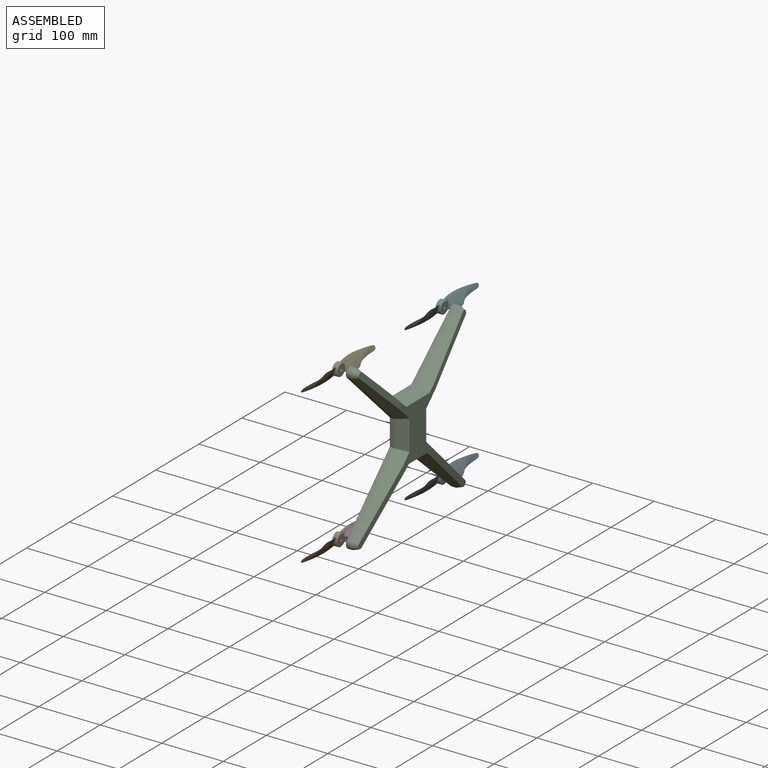
[diagram: assembled view]
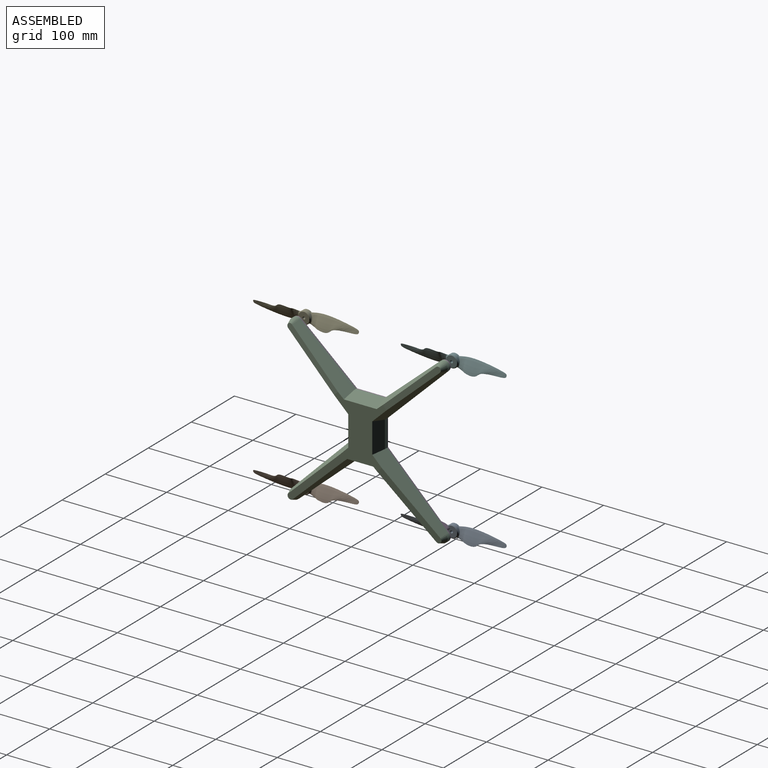
[diagram: assembled view, second angle]
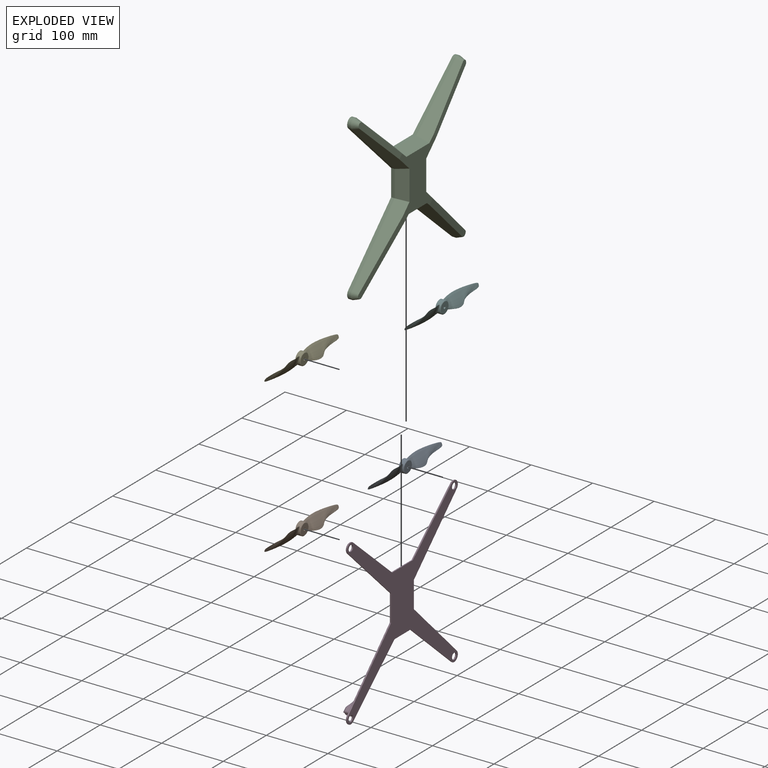
[diagram: exploded view]
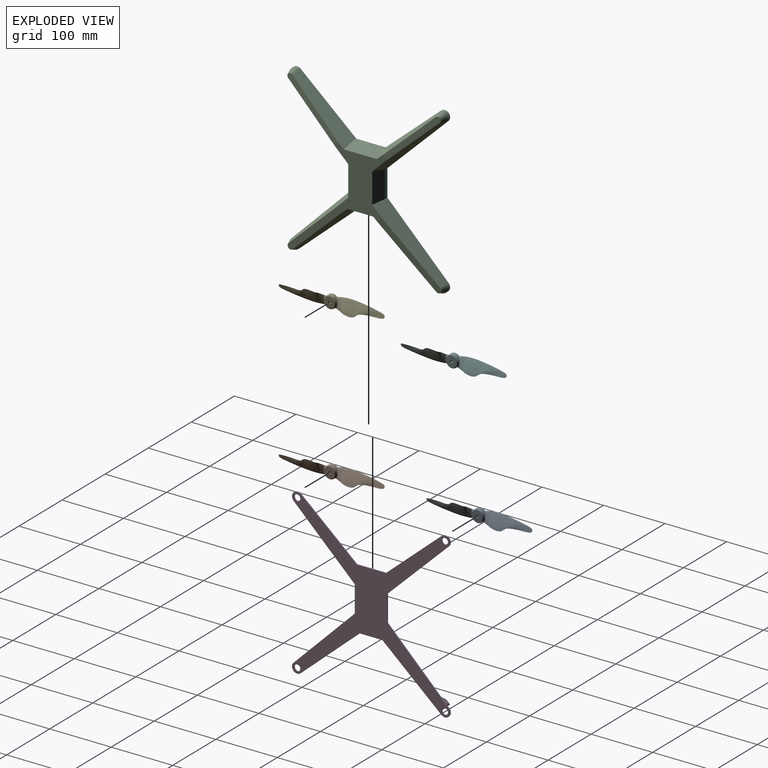
[diagram: exploded view, second angle]
ASSEMBLY  parts=6 mates=3
PART A: 18 faces, bbox 22.6x172x13.2 mm
  f0: cylinder r=10mm len=20mm, axis (0,0,-1), area 144.7mm2, adj f6,f7,f9,f15
  f1: cylinder r=10mm len=20mm, axis (0,0,-1), area 144.7mm2, adj f6,f7,f9,f14
  f2: plane 5.07x5.07mm, normal (0,0,1), area 20.2mm2, adj f6
  f3: plane 18.24x18.24mm, normal (0,0,-1), area 239.5mm2, adj f13,f14,f15,f16,f17
  f4: bspline ~78.51x21.19mm, area 2429.5mm2, adj f9,f10
  f5: bspline ~78.51x21.19mm, area 2429.5mm2, adj f7,f8
  f6: cone r=2.54mm half-angle=75deg, axis (0,0,-1), area 304.3mm2, adj f0,f1,f2,f8,f10
  f7: bspline ~15.27x7.55mm, area 66mm2, adj f0,f1,f5,f8,f16
  f8: bspline ~6.6x4.95mm, area 10.3mm2, adj f5,f6,f7
  f9: bspline ~15.27x7.55mm, area 66mm2, adj f0,f1,f4,f10,f13
  f10: bspline ~6.6x4.95mm, area 10.3mm2, adj f4,f6,f9
  f11: cone r=0mm half-angle=59deg, axis (0,0,-1), area 10.6mm2, adj f12
  f12: cylinder r=1.7mm len=5.5mm, axis (0,0,-1), area 58.7mm2, adj f11,f17
  f13: bspline ~4.95x3.15mm, area 6.7mm2, adj f3,f9,f14,f15
  f14: cone r=10mm half-angle=45deg, axis (0,0,1), area 35mm2, adj f1,f3,f13,f16
  f15: cone r=10mm half-angle=45deg, axis (0,0,1), area 35mm2, adj f0,f3,f13,f16
  f16: bspline ~4.95x3.15mm, area 6.7mm2, adj f3,f7,f14,f15
  f17: cone r=1.7mm half-angle=45deg, axis (0,0,-1), area 8.7mm2, adj f3,f12
PART B: same geometry as A
PART C: 263 faces, bbox 25x257x267 mm
  f0: plane 3.05x2.13mm, normal (-1,0,0), area 1.8mm2, adj f4,f20,f236
  f1: plane 82.5x50.98mm, normal (-1,0,0), area 3266.2mm2, adj f8,f24,f47,f54,f71,f134,f135,f136
  f2: plane 0.97x0.44mm, normal (-0.34,0.62,-0.71), area 0.2mm2, adj f12,f242,f243
  f3: plane 1.22x0.67mm, normal (-0.34,0.62,-0.71), area 0.5mm2, adj f13,f244,f245
  f4: plane 56.72x52.73mm, normal (-0.34,0.62,-0.71), area 730.9mm2, adj f0,f14,f19,f20,f47,f124,f236,f237
  f5: plane 17.57x15.26mm, normal (-0.34,0.62,-0.71), area 186.5mm2, adj f18,f124,f251,f252,f253,f254
  f6: plane 31.65x30.54mm, normal (-0.34,-0.65,0.68), area 479.7mm2, adj f12,f23,f123,f231,f232,f239,f240,f241
  f7: plane 21.61x20.86mm, normal (-0.34,-0.65,0.68), area 315.8mm2, adj f13,f123,f232,f233,f244,f245
  f8: plane 17.17x10.62mm, normal (-0.34,-0.65,0.68), area 111mm2, adj f1,f123,f136,f231,f238
  f9: plane 19.87x19.17mm, normal (-0.34,-0.65,0.68), area 245.4mm2, adj f15,f123,f233,f234,f246,f247
  f10: plane 15.39x14.86mm, normal (-0.34,-0.65,0.68), area 158.1mm2, adj f17,f123,f234,f235,f248,f249
  f11: plane 8.77x5.28mm, normal (-0.34,-0.65,0.68), area 23.7mm2, adj f16,f123,f144,f235
  f12: plane 7.58x5.11mm, normal (-1,-0.06,-0.06), area 19.2mm2, adj f2,f6,f242,f243
  f13: plane 10.02x9.13mm, normal (-1,-0.06,-0.06), area 38.9mm2, adj f3,f7,f244,f245
  f14: plane 8.24x7.61mm, normal (-1,-0.06,-0.06), area 30mm2, adj f4,f126,f258,f259
  f15: plane 9.57x8.68mm, normal (-1,-0.06,-0.06), area 32.8mm2, adj f9,f246,f247
  f16: plane 12.98x8.27mm, normal (-1,-0.06,-0.06), area 48.2mm2, adj f11,f125,f144,f235,f250
  f17: plane 8.99x6.95mm, normal (-1,-0.06,-0.06), area 24.6mm2, adj f10,f248,f249
  f18: plane 9.12x7.03mm, normal (-1,-0.06,-0.06), area 26.1mm2, adj f5,f252,f253
  f19: plane 9.4x8.51mm, normal (-1,-0.06,-0.06), area 34.3mm2, adj f4,f255,f256
  f20: plane 3.61x2.97mm, normal (-1,-0.06,-0.06), area 3.7mm2, adj f0,f4,f236,f262
  f21: plane 3.05x2.13mm, normal (-1,0,0), area 1.8mm2, adj f33,f44,f199
  f22: plane 8.23x5.99mm, normal (-1,0,0), area 22.7mm2, adj f25,f225,f226
  f23: plane 8.23x5.99mm, normal (-1,0,0), area 22.7mm2, adj f6,f239,f240
  f24: plane 17.17x10.62mm, normal (-0.34,0.65,0.68), area 111mm2, adj f1,f46,f134,f227,f229
  f25: plane 31.65x30.54mm, normal (-0.34,0.65,0.68), area 479.7mm2, adj f22,f36,f46,f221,f222,f223,f224,f225
  f26: plane 21.61x20.86mm, normal (-0.34,0.65,0.68), area 315.8mm2, adj f37,f46,f218,f219,f220,f221
  f27: plane 0.06x0.03mm, normal (-0.34,0.65,0.68), area 0mm2, adj f38,f204,f205
  f28: plane 19.87x19.17mm, normal (-0.34,0.65,0.68), area 245.4mm2, adj f43,f46,f215,f216,f217,f218
  f29: plane 15.39x14.86mm, normal (-0.34,0.65,0.68), area 158.1mm2, adj f42,f46,f212,f213,f214,f215
  f30: plane 8.77x5.28mm, normal (-0.34,0.65,0.68), area 23.7mm2, adj f41,f46,f121,f212
  f31: plane 16.43x12.49mm, normal (-0.34,-0.62,-0.71), area 144.4mm2, adj f41,f45,f121,f201,f211
  f32: plane 17.57x15.26mm, normal (-0.34,-0.62,-0.71), area 186.5mm2, adj f40,f45,f200,f201,f209,f210
  f33: plane 56.72x52.73mm, normal (-0.34,-0.62,-0.71), area 730.9mm2, adj f21,f38,f39,f44,f45,f47,f199,f200
  f34: plane 1.22x0.67mm, normal (-0.34,-0.62,-0.71), area 0.5mm2, adj f37,f219,f220
  f35: plane 0.97x0.44mm, normal (-0.34,-0.62,-0.71), area 0.2mm2, adj f36,f222,f223
  f36: plane 7.58x5.11mm, normal (-1,0.06,-0.06), area 19.2mm2, adj f25,f35,f222,f223
  f37: plane 10.02x9.13mm, normal (-1,0.06,-0.06), area 38.9mm2, adj f26,f34,f219,f220
  f38: plane 8.24x7.61mm, normal (-1,0.06,-0.06), area 30mm2, adj f27,f33,f204,f205
  f39: plane 9.4x8.51mm, normal (-1,0.06,-0.06), area 34.3mm2, adj f33,f207,f208
  f40: plane 9.12x7.03mm, normal (-1,0.06,-0.06), area 26.1mm2, adj f32,f209,f210
  f41: plane 12.98x8.27mm, normal (-1,0.06,-0.06), area 48.2mm2, adj f30,f31,f121,f211,f212
  f42: plane 8.99x6.95mm, normal (-1,0.06,-0.06), area 24.6mm2, adj f29,f213,f214
  f43: plane 9.57x8.68mm, normal (-1,0.06,-0.06), area 32.8mm2, adj f28,f216,f217
  f44: plane 3.61x2.97mm, normal (-1,0.06,-0.06), area 3.7mm2, adj f21,f33,f199,f202
  f45: plane 91.17x79.21mm, normal (0,-0.66,-0.75), area 639.9mm2, adj f31,f32,f33,f82,f120,f133,f200,f201
  f46: plane 100.17x96.67mm, normal (0,0.69,0.72), area 737.4mm2, adj f24,f25,f26,f28,f29,f30,f82,f120
  f47: plane 52.37x17.17mm, normal (-0.34,0,-0.94), area 938.4mm2, adj f1,f4,f33,f133,f229,f238
  f48: plane 6.78x6.75mm, normal (-1,0,0), area 23mm2, adj f53,f58,f186,f187
  f49: plane 96.6x84.83mm, normal (0,-0.66,0.75), area 673.4mm2, adj f55,f56,f57,f82,f129,f131,f137,f178
  f50: plane 7.72x4.03mm, normal (-0.34,0.66,-0.67), area 13.7mm2, adj f62,f128,f138,f175
  f51: plane 19.83x19.68mm, normal (-0.34,0.66,-0.67), area 207.2mm2, adj f61,f128,f174,f175,f193,f194
  f52: plane 20.16x20.02mm, normal (-0.34,0.66,-0.67), area 260mm2, adj f60,f128,f173,f174,f191,f192
  f53: plane 48.86x47.09mm, normal (-0.34,0.66,-0.67), area 778.7mm2, adj f48,f58,f59,f128,f172,f173,f186,f187
  f54: plane 17.17x13.53mm, normal (-0.34,0.66,-0.67), area 172.5mm2, adj f1,f128,f134,f172,f185
  f55: plane 16.17x12.6mm, normal (-0.34,-0.62,0.71), area 134.1mm2, adj f49,f62,f138,f196
  f56: plane 31x27.85mm, normal (-0.34,-0.62,0.71), area 484.4mm2, adj f49,f63,f135,f181,f182,f183,f184
  f57: plane 24.64x21.64mm, normal (-0.34,-0.62,0.71), area 331.1mm2, adj f49,f139,f178,f179,f180,f181
  f58: plane 10.06x6.24mm, normal (-1,0.05,0.06), area 21.6mm2, adj f48,f53,f187
  f59: plane 12.8x11.97mm, normal (-1,0.05,0.06), area 53.4mm2, adj f53,f189,f190
  f60: plane 10.73x10.04mm, normal (-1,0.05,0.06), area 38.6mm2, adj f52,f191,f192
  f61: plane 11.07x10.38mm, normal (-1,0.05,0.06), area 35.2mm2, adj f51,f193,f194
  f62: plane 14.09x8.92mm, normal (-1,0.05,0.06), area 54.6mm2, adj f50,f55,f138,f175,f196
  f63: plane 13.51x12.56mm, normal (-1,0.05,0.06), area 58.8mm2, adj f56,f182,f183
  f64: plane 11.4x10.6mm, normal (-1,0.05,0.06), area 37.4mm2, adj f129,f177,f197
  f65: plane 96.6x84.83mm, normal (0,0.66,0.75), area 673.9mm2, adj f67,f68,f69,f82,f127,f131,f140,f145
  f66: plane 100.23x99.49mm, normal (0,-0.7,-0.71), area 744.2mm2, adj f70,f71,f72,f73,f74,f82,f132,f140
  f67: plane 22.8x20.03mm, normal (-0.34,0.62,0.71), area 252.4mm2, adj f65,f78,f146,f148,f169,f171
  f68: plane 24.64x21.64mm, normal (-0.34,0.62,0.71), area 331.1mm2, adj f65,f77,f147,f148,f167,f168
  f69: plane 31x27.85mm, normal (-0.34,0.62,0.71), area 484.4mm2, adj f65,f76,f135,f147,f164,f165,f166
  f70: plane 48.86x47.09mm, normal (-0.34,-0.66,-0.67), area 778.7mm2, adj f66,f75,f80,f122,f156,f157,f158,f159
  f71: plane 17.17x13.53mm, normal (-0.34,-0.66,-0.67), area 172.5mm2, adj f1,f66,f136,f162,f163
  f72: plane 20.16x20.02mm, normal (-0.34,-0.66,-0.67), area 260mm2, adj f66,f142,f153,f154,f155,f156
  f73: plane 19.83x19.68mm, normal (-0.34,-0.66,-0.67), area 207.2mm2, adj f66,f81,f150,f151,f152,f153
  f74: plane 7.72x4.03mm, normal (-0.34,-0.66,-0.67), area 13.7mm2, adj f66,f79,f141,f150
  f75: plane 12.8x11.97mm, normal (-1,-0.05,0.06), area 53.4mm2, adj f70,f157,f158
  f76: plane 13.51x12.56mm, normal (-1,-0.05,0.06), area 58.8mm2, adj f69,f165,f166
  f77: plane 11.58x10.77mm, normal (-1,-0.05,0.06), area 43.7mm2, adj f68,f167,f168
  f78: plane 11.4x10.6mm, normal (-1,-0.05,0.06), area 37.4mm2, adj f67,f169,f171
  f79: plane 14.09x8.92mm, normal (-1,-0.05,0.06), area 54.6mm2, adj f74,f127,f141,f145,f150
  f80: plane 10.06x6.24mm, normal (-1,-0.05,0.06), area 21.6mm2, adj f70,f122,f160
  f81: plane 11.07x10.38mm, normal (-1,-0.05,0.06), area 35.2mm2, adj f73,f151,f152
  f82: plane 267x257mm, normal (-1,0,0), area 3300.6mm2, adj f45,f46,f49,f65,f66,f83,f88,f89
  f83: cylinder r=8.5mm len=14.62mm, axis (-1,0,0), area 151.4mm2, adj f82,f84,f88,f89
  f84: cone r=1.5mm half-angle=20deg, axis (-1,0,0), area 226.2mm2, adj f83,f85,f86,f87
  f85: plane 106.4x98.73mm, normal (0.34,-0.65,-0.68), area 2361.4mm2, adj f84,f87,f89,f90,f107
  f86: plane 93x85.59mm, normal (0.34,0.62,0.71), area 1979.1mm2, adj f84,f87,f88,f90,f108
  f87: plane 88.24x81.43mm, normal (1,-0.06,0.06), area 1016.9mm2, adj f84,f85,f86,f90
  f88: plane 90.47x78.59mm, normal (0,0.66,0.75), area 691.2mm2, adj f82,f83,f86,f106
  f89: plane 99.4x95.93mm, normal (0,-0.69,-0.72), area 796.8mm2, adj f82,f83,f85,f103
  f90: plane 100.1x85.34mm, normal (1,0,0), area 4264.2mm2, adj f85,f86,f87,f93,f94,f97,f98,f101
  f91: plane 99.4x95.93mm, normal (0,0.69,-0.72), area 796.8mm2, adj f82,f94,f105,f117
  f92: plane 90.47x78.59mm, normal (0,-0.66,0.75), area 691.2mm2, adj f82,f93,f106,f117
  f93: plane 93x85.59mm, normal (0.34,-0.62,0.71), area 1979.1mm2, adj f90,f92,f108,f118,f119
  f94: plane 106.4x98.73mm, normal (0.34,0.65,-0.68), area 2361.4mm2, adj f90,f91,f110,f118,f119
  f95: plane 95.89x84.21mm, normal (0,-0.66,-0.75), area 736.1mm2, adj f82,f97,f104,f114
  f96: plane 99.49x98.76mm, normal (0,0.7,0.71), area 808.5mm2, adj f82,f98,f105,f114
  f97: plane 98.21x91.21mm, normal (0.34,-0.62,-0.71), area 2017mm2, adj f90,f95,f109,f115,f116
  f98: plane 106.49x101.26mm, normal (0.34,0.66,0.67), area 2282.4mm2, adj f90,f96,f110,f115,f116
  f99: plane 99.49x98.76mm, normal (0,-0.7,0.71), area 808.5mm2, adj f82,f101,f103,f111
  f100: plane 95.89x84.21mm, normal (0,0.66,-0.75), area 736.1mm2, adj f82,f102,f104,f111
  f101: plane 106.49x101.26mm, normal (0.34,-0.66,0.67), area 2282.4mm2, adj f90,f99,f107,f112,f113
  f102: plane 98.21x91.21mm, normal (0.34,0.62,-0.71), area 2017mm2, adj f90,f100,f109,f112,f113
  f103: plane 43.16x5.77mm, normal (0,-1,0), area 248.9mm2, adj f82,f89,f99,f107
  f104: plane 37x5.77mm, normal (0,0,-1), area 213.4mm2, adj f82,f95,f100,f109
  f105: plane 43.16x5.77mm, normal (0,1,0), area 248.9mm2, adj f82,f91,f96,f110
  f106: plane 47.92x5.77mm, normal (0,0,1), area 276.4mm2, adj f82,f88,f92,f108
  f107: plane 49.04x19.23mm, normal (0.34,-0.94,0), area 943.5mm2, adj f85,f90,f101,f103
  f108: plane 53.15x19.23mm, normal (0.34,0,0.94), area 1034.3mm2, adj f86,f90,f93,f106
  f109: plane 42.27x19.23mm, normal (0.34,0,-0.94), area 811.2mm2, adj f90,f97,f102,f104
  f110: plane 49.04x19.23mm, normal (0.34,0.94,0), area 943.5mm2, adj f90,f94,f98,f105
  f111: cylinder r=8.5mm len=14.53mm, axis (-1,0,0), area 151mm2, adj f82,f99,f100,f112
  f112: cone r=1.5mm half-angle=20deg, axis (-1,0,0), area 209.5mm2, adj f101,f102,f111,f113
  f113: plane 97.68x91.66mm, normal (1,-0.05,-0.06), area 1283.4mm2, adj f90,f101,f102,f112
  f114: cylinder r=8.5mm len=14.53mm, axis (-1,0,0), area 151mm2, adj f82,f95,f96,f115
  f115: cone r=1.5mm half-angle=20deg, axis (-1,0,0), area 209.5mm2, adj f97,f98,f114,f116
  f116: plane 97.68x91.66mm, normal (1,0.05,-0.06), area 1283.4mm2, adj f90,f97,f98,f115
  f117: cylinder r=8.5mm len=14.62mm, axis (-1,0,0), area 151.4mm2, adj f82,f91,f92,f118
  f118: cone r=1.5mm half-angle=20deg, axis (-1,0,0), area 226.2mm2, adj f93,f94,f117,f119
  f119: plane 88.24x81.43mm, normal (1,0.06,0.06), area 1016.9mm2, adj f90,f93,f94,f118
  f120: cylinder r=6mm len=10.32mm, axis (-1,0,0), area 98.7mm2, adj f45,f46,f82,f121
  f121: cone r=1.5mm half-angle=20deg, axis (-1,0,0), area 123.9mm2, adj f30,f31,f41,f120
  f122: plane 6.78x6.75mm, normal (-1,0,0), area 23mm2, adj f70,f80,f160,f161
  f123: plane 100.17x96.67mm, normal (0,-0.69,0.72), area 737.4mm2, adj f6,f7,f8,f9,f10,f11,f82,f132
  f124: plane 91.17x79.21mm, normal (0,0.66,-0.75), area 639.9mm2, adj f4,f5,f82,f125,f133,f143,f251,f254
  f125: plane 16.43x12.49mm, normal (-0.34,0.62,-0.71), area 144.4mm2, adj f16,f124,f144,f250,f251
  f126: plane 0.06x0.03mm, normal (-0.34,-0.65,0.68), area 0mm2, adj f14,f258,f259
  f127: plane 16.17x12.6mm, normal (-0.34,0.62,0.71), area 134.1mm2, adj f65,f79,f141,f145
  f128: plane 100.23x99.49mm, normal (0,0.7,-0.71), area 742.7mm2, adj f50,f51,f52,f53,f54,f82,f130,f137
  f129: plane 22.8x20.03mm, normal (-0.34,-0.62,0.71), area 252.4mm2, adj f49,f64,f177,f178,f197,f198
  f130: plane 45.26x5.33mm, normal (0,1,0), area 241.1mm2, adj f46,f82,f128,f134
  f131: plane 38.88x5.33mm, normal (0,0,1), area 207.1mm2, adj f49,f65,f82,f135
  f132: plane 45.26x5.33mm, normal (0,-1,0), area 241.1mm2, adj f66,f82,f123,f136
  f133: plane 49.79x5.33mm, normal (0,0,-1), area 265.2mm2, adj f45,f47,f82,f124
  f134: plane 50.52x17.17mm, normal (-0.34,0.94,0), area 875.2mm2, adj f1,f24,f54,f130
  f135: plane 43.59x17.17mm, normal (-0.34,0,0.94), area 753.7mm2, adj f1,f56,f69,f131,f149,f176
  f136: plane 50.52x17.17mm, normal (-0.34,-0.94,0), area 875.2mm2, adj f1,f8,f71,f132
  f137: cylinder r=6mm len=10.26mm, axis (-1,0,0), area 98.5mm2, adj f49,f82,f128,f138
  f138: cone r=1.5mm half-angle=20deg, axis (-1,0,0), area 113.4mm2, adj f50,f55,f62,f137
  f139: plane 11.58x10.77mm, normal (-1,0.05,0.06), area 43.7mm2, adj f57,f179,f180
  f140: cylinder r=6mm len=10.26mm, axis (-1,0,0), area 98.5mm2, adj f65,f66,f82,f141
  f141: cone r=1.5mm half-angle=20deg, axis (-1,0,0), area 113.4mm2, adj f74,f79,f127,f140
  f142: plane 10.73x10.04mm, normal (-1,-0.05,0.06), area 38.6mm2, adj f72,f154,f155
  f143: cylinder r=6mm len=10.32mm, axis (-1,0,0), area 98.7mm2, adj f82,f123,f124,f144
  f144: cone r=1.5mm half-angle=20deg, axis (-1,0,0), area 123.9mm2, adj f11,f16,f125,f143
  f145: plane 17.86x13.84mm, normal (-0.05,-0.26,-0.96), area 217.4mm2, adj f65,f79,f127,f146,f150,f170
  f146: cone r=2mm half-angle=3deg, axis (1,0,0), area 5.5mm2, adj f65,f67,f145,f169,f170
  f147: cone r=2mm half-angle=3deg, axis (1,0,0), area 15mm2, adj f65,f68,f69,f166,f167,f170
  f148: cone r=2mm half-angle=3deg, axis (1,0,0), area 10.6mm2, adj f65,f67,f68,f168,f170,f171
  f149: plane 15.43x5.83mm, normal (0.34,-0.62,-0.71), area 5.8mm2, adj f1,f135,f163,f164
  f150: cone r=2mm half-angle=3deg, axis (1,0,0), area 56.7mm2, adj f66,f73,f74,f79,f145,f151,f170
  f151: plane 16.67x14.49mm, normal (-0.05,0.26,0.96), area 209.8mm2, adj f73,f81,f150,f152,f170
  f152: plane 15.02x14.68mm, normal (-0.05,0.98,0.2), area 189.5mm2, adj f73,f81,f151,f153,f170
  f153: cone r=2mm half-angle=3deg, axis (1,0,0), area 12.3mm2, adj f66,f72,f73,f152,f154,f170
  f154: plane 19.64x17mm, normal (-0.05,0.25,0.97), area 284.3mm2, adj f72,f142,f153,f155,f170
  f155: plane 17.4x13.94mm, normal (-0.05,1,0), area 202.6mm2, adj f72,f142,f154,f156,f170
  f156: cone r=2mm half-angle=3deg, axis (1,0,0), area 12.5mm2, adj f66,f70,f72,f155,f157,f170
  f157: plane 24.3x19.68mm, normal (-0.05,0.27,0.96), area 399.5mm2, adj f70,f75,f156,f158,f170
  f158: plane 20.15x16.5mm, normal (-0.05,1,0), area 274.3mm2, adj f70,f75,f157,f159,f170
  f159: cone r=2mm half-angle=3deg, axis (1,0,0), area 16.1mm2, adj f70,f158,f160,f170
  f160: plane 27.92x22.5mm, normal (-0.05,0.28,0.96), area 516.4mm2, adj f70,f80,f122,f159,f161,f170
  f161: plane 22.5x11.39mm, normal (-0.05,0.87,-0.49), area 246.8mm2, adj f70,f122,f160,f162,f170
  f162: cone r=2mm half-angle=3deg, axis (1,0,0), area 53.2mm2, adj f66,f70,f71,f161,f163,f170
  f163: plane 22.5x13.94mm, normal (-0.05,-0.87,0.49), area 310.1mm2, adj f1,f71,f149,f162,f164,f170
  f164: cone r=2mm half-angle=3deg, axis (1,0,0), area 27.2mm2, adj f69,f149,f163,f165,f170
  f165: plane 28.92x21.73mm, normal (-0.05,-0.28,-0.96), area 518.3mm2, adj f69,f76,f164,f166,f170
  f166: plane 20.78x16.51mm, normal (-0.05,-1,0), area 283.3mm2, adj f69,f76,f147,f165,f170
  f167: plane 24.3x18.75mm, normal (-0.05,-0.27,-0.96), area 379.3mm2, adj f68,f77,f147,f168,f170
  f168: plane 17.94x13.97mm, normal (-0.05,-1,0), area 209.8mm2, adj f68,f77,f148,f167,f170
  f169: plane 15.57x14.67mm, normal (-0.05,-0.98,-0.2), area 194.4mm2, adj f67,f78,f146,f170,f171
  f170: plane 101.98x93.27mm, normal (-1,0,0), area 663.6mm2, adj f145,f146,f147,f148,f150,f151,f152,f153
  f171: plane 19.92x16.24mm, normal (-0.05,-0.25,-0.97), area 272.2mm2, adj f67,f78,f148,f169,f170
  f172: cone r=2mm half-angle=3deg, axis (1,0,0), area 53.2mm2, adj f53,f54,f128,f185,f186,f195
  f173: cone r=2mm half-angle=3deg, axis (1,0,0), area 12.5mm2, adj f52,f53,f128,f190,f191,f195
  f174: cone r=2mm half-angle=3deg, axis (1,0,0), area 12.3mm2, adj f51,f52,f128,f192,f193,f195
  f175: cone r=2mm half-angle=3deg, axis (1,0,0), area 56.7mm2, adj f50,f51,f62,f128,f194,f195,f196
  f176: plane 15.43x5.83mm, normal (0.34,0.62,-0.71), area 5.8mm2, adj f1,f135,f184,f185
  f177: plane 19.92x16.24mm, normal (-0.05,0.25,-0.97), area 272.2mm2, adj f64,f129,f178,f195,f197
  f178: cone r=2mm half-angle=3deg, axis (1,0,0), area 10.6mm2, adj f49,f57,f129,f177,f179,f195
  f179: plane 17.94x13.97mm, normal (-0.05,1,0), area 209.8mm2, adj f57,f139,f178,f180,f195
  f180: plane 24.3x18.75mm, normal (-0.05,0.27,-0.96), area 379.3mm2, adj f57,f139,f179,f181,f195
  f181: cone r=2mm half-angle=3deg, axis (1,0,0), area 15mm2, adj f49,f56,f57,f180,f182,f195
  f182: plane 20.78x16.51mm, normal (-0.05,1,0), area 283.3mm2, adj f56,f63,f181,f183,f195
  f183: plane 28.92x21.73mm, normal (-0.05,0.28,-0.96), area 518.3mm2, adj f56,f63,f182,f184,f195
  f184: cone r=2mm half-angle=3deg, axis (1,0,0), area 27.2mm2, adj f56,f176,f183,f185,f195
  f185: plane 22.5x13.94mm, normal (-0.05,0.87,0.49), area 310.1mm2, adj f1,f54,f172,f176,f184,f195
  f186: plane 22.5x11.39mm, normal (-0.05,-0.87,-0.49), area 246.8mm2, adj f48,f53,f172,f187,f195
  f187: plane 27.92x22.5mm, normal (-0.05,-0.28,0.96), area 516.4mm2, adj f48,f53,f58,f186,f188,f195
  f188: cone r=2mm half-angle=3deg, axis (1,0,0), area 16.1mm2, adj f53,f187,f189,f195
  f189: plane 20.15x16.5mm, normal (-0.05,-1,0), area 274.3mm2, adj f53,f59,f188,f190,f195
  f190: plane 24.3x19.68mm, normal (-0.05,-0.27,0.96), area 399.5mm2, adj f53,f59,f173,f189,f195
  f191: plane 17.4x13.94mm, normal (-0.05,-1,0), area 202.6mm2, adj f52,f60,f173,f192,f195
  f192: plane 19.64x17mm, normal (-0.05,-0.25,0.97), area 284.3mm2, adj f52,f60,f174,f191,f195
  f193: plane 15.02x14.68mm, normal (-0.05,-0.98,0.2), area 189.5mm2, adj f51,f61,f174,f194,f195
  f194: plane 16.67x14.49mm, normal (-0.05,-0.26,0.96), area 209.8mm2, adj f51,f61,f175,f193,f195
  f195: plane 101.98x93.27mm, normal (-1,0,0), area 663.6mm2, adj f172,f173,f174,f175,f177,f178,f179,f180
  f196: plane 17.86x13.84mm, normal (-0.05,0.26,-0.96), area 217.4mm2, adj f49,f55,f62,f175,f195,f198
  f197: plane 15.57x14.67mm, normal (-0.05,0.98,-0.2), area 194.4mm2, adj f64,f129,f177,f195,f198
  f198: cone r=2mm half-angle=3deg, axis (1,0,0), area 5.4mm2, adj f49,f129,f195,f196,f197
  f199: plane 22.5x10.25mm, normal (-0.05,-0.4,0.91), area 199.6mm2, adj f21,f33,f44,f202,f228,f230
  f200: cone r=4mm half-angle=3deg, axis (1,0,0), area 34.9mm2, adj f32,f33,f45,f208,f209,f228
  f201: cone r=4mm half-angle=3deg, axis (1,0,0), area 43.7mm2, adj f31,f32,f45,f210,f211,f228
  f202: plane 22.47x8.9mm, normal (-0.05,0.9,-0.44), area 177mm2, adj f33,f44,f199,f203,f228
  f203: cone r=4mm half-angle=3deg, axis (1,0,0), area 79mm2, adj f33,f202,f204,f228
  f204: plane 21.23x16.05mm, normal (-0.05,0,1), area 286.7mm2, adj f27,f33,f38,f203,f205,f228
  f205: plane 20.8x14.93mm, normal (-0.05,1,0.05), area 260mm2, adj f27,f33,f38,f204,f206,f228
  f206: cone r=4mm half-angle=3deg, axis (1,0,0), area 38.3mm2, adj f33,f205,f207,f228
  f207: plane 18.95x18.78mm, normal (-0.05,0.13,0.99), area 298mm2, adj f33,f39,f206,f208,f228
  f208: plane 18.36x12.73mm, normal (-0.05,1,-0.02), area 202.2mm2, adj f33,f39,f200,f207,f228
  f209: plane 17.96x16.69mm, normal (-0.05,0.17,0.98), area 252.7mm2, adj f32,f40,f200,f210,f228
  f210: plane 16.1x8.2mm, normal (-0.05,0.96,-0.26), area 124.2mm2, adj f32,f40,f201,f209,f228
  f211: plane 15.93x14.77mm, normal (-0.05,0.23,0.97), area 206.8mm2, adj f31,f41,f201,f212,f228
  f212: cone r=2mm half-angle=3deg, axis (1,0,0), area 65.8mm2, adj f29,f30,f41,f46,f211,f213,f228
  f213: plane 16.3x15.44mm, normal (-0.05,-0.19,-0.98), area 214.2mm2, adj f29,f42,f212,f214,f228
  f214: plane 15.66x8.15mm, normal (-0.05,-0.97,0.25), area 119.1mm2, adj f29,f42,f213,f215,f228
  f215: cone r=4mm half-angle=3deg, axis (1,0,0), area 43.5mm2, adj f28,f29,f46,f214,f216,f228
  f216: plane 17.66x17.4mm, normal (-0.05,-0.19,-0.98), area 260.9mm2, adj f28,f43,f215,f217,f228
  f217: plane 17.78x12.68mm, normal (-0.05,-1,0), area 194mm2, adj f28,f43,f216,f218,f228
  f218: cone r=4mm half-angle=3deg, axis (1,0,0), area 37.1mm2, adj f26,f28,f46,f217,f219,f228
  f219: plane 19.67x18.9mm, normal (-0.05,-0.13,-0.99), area 310.7mm2, adj f26,f34,f37,f218,f220,f228
  f220: plane 20.15x15.26mm, normal (-0.05,-1,-0.01), area 257.9mm2, adj f26,f34,f37,f219,f221,f228
  f221: cone r=4mm half-angle=3deg, axis (1,0,0), area 41.7mm2, adj f25,f26,f46,f220,f222,f228
  f222: plane 21.84x16.62mm, normal (-0.05,0.06,-1), area 293.7mm2, adj f25,f35,f36,f221,f223,f228
  f223: plane 22.01x9.73mm, normal (-0.05,-0.89,0.44), area 204.3mm2, adj f25,f35,f36,f222,f224,f228
  f224: cone r=4mm half-angle=3deg, axis (1,0,0), area 91.5mm2, adj f25,f223,f225,f228
  f225: plane 22.5x10.25mm, normal (-0.05,0.42,-0.91), area 218.2mm2, adj f22,f25,f224,f226,f228
  f226: plane 22.5x19.64mm, normal (-0.05,-1,-0.08), area 346.8mm2, adj f22,f25,f225,f227,f228
  f227: cone r=2mm half-angle=3deg, axis (1,0,0), area 63.8mm2, adj f24,f25,f46,f226,f228,f229
  f228: plane 95.97x92.81mm, normal (-1,0,0), area 644.4mm2, adj f199,f200,f201,f202,f203,f204,f205,f206
  f229: plane 22.5x19.17mm, normal (-0.05,0.99,0.1), area 388.3mm2, adj f1,f24,f33,f47,f227,f228,f230
  f230: cone r=4mm half-angle=3deg, axis (1,0,0), area 71.4mm2, adj f33,f199,f228,f229
  f231: cone r=2mm half-angle=3deg, axis (1,0,0), area 63.8mm2, adj f6,f8,f123,f238,f239,f260
  f232: cone r=4mm half-angle=3deg, axis (1,0,0), area 41.7mm2, adj f6,f7,f123,f243,f244,f260
  f233: cone r=4mm half-angle=3deg, axis (1,0,0), area 37.1mm2, adj f7,f9,f123,f245,f246,f260
  f234: cone r=4mm half-angle=3deg, axis (1,0,0), area 43.5mm2, adj f9,f10,f123,f247,f248,f260
  f235: cone r=2mm half-angle=3deg, axis (1,0,0), area 65.8mm2, adj f10,f11,f16,f123,f249,f250,f260
  f236: plane 22.5x10.25mm, normal (-0.05,0.4,0.91), area 199.6mm2, adj f0,f4,f20,f237,f260,f262
  f237: cone r=4mm half-angle=3deg, axis (1,0,0), area 71.4mm2, adj f4,f236,f238,f260
  f238: plane 22.5x19.17mm, normal (-0.05,-0.99,0.1), area 388.3mm2, adj f1,f4,f8,f47,f231,f237,f260
  f239: plane 22.5x19.64mm, normal (-0.05,1,-0.08), area 346.8mm2, adj f6,f23,f231,f240,f260
  f240: plane 22.5x10.25mm, normal (-0.05,-0.42,-0.91), area 218.2mm2, adj f6,f23,f239,f241,f260
  f241: cone r=4mm half-angle=3deg, axis (1,0,0), area 91.5mm2, adj f6,f240,f242,f260
  f242: plane 22.01x9.73mm, normal (-0.05,0.89,0.44), area 204.3mm2, adj f2,f6,f12,f241,f243,f260
  f243: plane 21.84x16.62mm, normal (-0.05,-0.06,-1), area 293.7mm2, adj f2,f6,f12,f232,f242,f260
  f244: plane 20.15x15.26mm, normal (-0.05,1,-0.01), area 257.9mm2, adj f3,f7,f13,f232,f245,f260
  f245: plane 19.67x18.9mm, normal (-0.05,0.13,-0.99), area 310.7mm2, adj f3,f7,f13,f233,f244,f260
  f246: plane 17.78x12.68mm, normal (-0.05,1,0), area 194mm2, adj f9,f15,f233,f247,f260
  f247: plane 17.66x17.4mm, normal (-0.05,0.19,-0.98), area 260.9mm2, adj f9,f15,f234,f246,f260
  f248: plane 15.66x8.15mm, normal (-0.05,0.97,0.25), area 119.1mm2, adj f10,f17,f234,f249,f260
  f249: plane 16.3x15.44mm, normal (-0.05,0.19,-0.98), area 214.2mm2, adj f10,f17,f235,f248,f260
  f250: plane 15.93x14.77mm, normal (-0.05,-0.23,0.97), area 206.8mm2, adj f16,f125,f235,f251,f260
  f251: cone r=4mm half-angle=3deg, axis (1,0,0), area 43.7mm2, adj f5,f124,f125,f250,f252,f260
  f252: plane 16.1x8.2mm, normal (-0.05,-0.96,-0.26), area 124.2mm2, adj f5,f18,f251,f253,f260
  f253: plane 17.96x16.69mm, normal (-0.05,-0.17,0.98), area 252.7mm2, adj f5,f18,f252,f254,f260
  f254: cone r=4mm half-angle=3deg, axis (1,0,0), area 34.9mm2, adj f4,f5,f124,f253,f255,f260
  f255: plane 18.36x12.73mm, normal (-0.05,-1,-0.02), area 202.2mm2, adj f4,f19,f254,f256,f260
  f256: plane 18.95x18.78mm, normal (-0.05,-0.13,0.99), area 298mm2, adj f4,f19,f255,f257,f260
  f257: cone r=4mm half-angle=3deg, axis (1,0,0), area 38.3mm2, adj f4,f256,f258,f260
  f258: plane 20.8x14.93mm, normal (-0.05,-1,0.05), area 260mm2, adj f4,f14,f126,f257,f259,f260
  f259: plane 21.23x16.05mm, normal (-0.05,0,1), area 286.7mm2, adj f4,f14,f126,f258,f260,f261
  f260: plane 95.97x92.81mm, normal (-1,0,0), area 644.4mm2, adj f231,f232,f233,f234,f235,f236,f237,f238
  f261: cone r=4mm half-angle=3deg, axis (1,0,0), area 79mm2, adj f4,f259,f260,f262
  f262: plane 22.47x8.9mm, normal (-0.05,-0.9,-0.44), area 177mm2, adj f4,f20,f236,f260,f261
PART D: 72 faces, bbox 258.5x13.9x268.5 mm
  f0: cylinder r=3mm len=9.24mm, axis (0,1,0), area 29.9mm2, adj f2,f3,f61,f62,f65,f71
  f1: cylinder r=3mm len=9.34mm, axis (0,-1,0), area 30.8mm2, adj f2,f3,f60,f62,f65,f66
  f2: plane 256.37x245.47mm, normal (0,1,0), area 12551mm2, adj f0,f1,f3,f28,f29,f30,f31,f32
  f3: torus R=7mm, axis (0,-1,0), area 98.2mm2, adj f0,f1,f2,f26,f43,f44,f45,f62
  f4: plane 6.44x6.41mm, normal (0,-1,0), area 6.3mm2, adj f35,f50,f51,f52
  f5: plane 8.02x7.97mm, normal (0,1,0), area 29.5mm2, adj f49,f50,f53,f58
  f6: cylinder r=8.5mm len=14.62mm, axis (0,1,0), area 26.3mm2, adj f7,f21,f22,f27
  f7: plane 99.4x95.93mm, normal (-0.69,0,-0.72), area 138.1mm2, adj f6,f8,f22,f29
  f8: plane 43.16x1mm, normal (-1,0,0), area 43.2mm2, adj f7,f9,f22,f31
  f9: plane 99.49x98.76mm, normal (-0.7,0,0.71), area 140.2mm2, adj f8,f10,f22,f33
  f10: cylinder r=8.5mm len=14.53mm, axis (0,1,0), area 26.2mm2, adj f9,f11,f22,f36
  f11: plane 95.89x84.21mm, normal (0.66,0,-0.75), area 127.6mm2, adj f10,f12,f22,f39
  f12: plane 37x1mm, normal (0,0,-1), area 37mm2, adj f11,f13,f22,f41
  f13: plane 95.89x84.21mm, normal (-0.66,0,-0.75), area 127.6mm2, adj f12,f14,f22,f43
  f14: cylinder r=8.5mm len=14.53mm, axis (0,1,0), area 26.2mm2, adj f13,f15,f22,f44
  f15: plane 99.49x98.76mm, normal (0.7,0,0.71), area 140.2mm2, adj f14,f16,f22,f45
  f16: plane 43.16x1mm, normal (1,0,0), area 43.2mm2, adj f15,f17,f22,f42
  f17: plane 99.4x95.93mm, normal (0.69,0,-0.72), area 138.1mm2, adj f16,f18,f22,f40
  f18: cylinder r=8.5mm len=14.62mm, axis (0,1,0), area 26.3mm2, adj f17,f19,f22,f37
  f19: plane 90.47x78.59mm, normal (-0.66,0,0.75), area 119.8mm2, adj f18,f20,f22,f34
  f20: plane 47.92x1mm, normal (0,0,1), area 47.9mm2, adj f19,f21,f22,f32
  f21: plane 90.47x78.59mm, normal (0.66,0,0.75), area 119.8mm2, adj f6,f20,f22,f30
  f22: plane 267x257mm, normal (0,-1,0), area 16021.5mm2, adj f6,f7,f8,f9,f10,f11,f12,f13
  f23: cylinder r=5mm len=10mm, axis (0,1,0), area 31.4mm2, adj f22,f38
  f24: cylinder r=5mm len=10mm, axis (0,1,0), area 31.4mm2, adj f22,f28
  f25: cylinder r=5mm len=10mm, axis (0,1,0), area 31.4mm2, adj f22,f35
  f26: cylinder r=5mm len=10mm, axis (0,1,0), area 31.4mm2, adj f3,f22
  f27: torus R=6.5mm, axis (0,-1,0), area 70.3mm2, adj f6,f28,f29,f30
  f28: torus R=7mm, axis (0,-1,0), area 106.8mm2, adj f2,f24,f27,f29,f30
  f29: cylinder r=2mm len=101.4mm, axis (0.72,0,-0.69), area 434.5mm2, adj f2,f7,f27,f28,f31
  f30: cylinder r=2mm len=92.34mm, axis (-0.75,0,0.66), area 376.9mm2, adj f2,f21,f27,f28,f32
  f31: cylinder r=2mm len=44.84mm, axis (0,0,-1), area 137.5mm2, adj f2,f8,f29,f33
  f32: cylinder r=2mm len=49.42mm, axis (-1,0,0), area 152.3mm2, adj f2,f20,f30,f34
  f33: cylinder r=2mm len=101.49mm, axis (-0.71,0,-0.7), area 440.9mm2, adj f2,f9,f31,f35,f36
  f34: cylinder r=2mm len=92.34mm, axis (-0.75,0,-0.66), area 376.9mm2, adj f2,f19,f32,f37,f38
  f35: torus R=7mm, axis (0,-1,0), area 98mm2, adj f2,f4,f25,f33,f36,f39,f51,f52
  f36: torus R=6.5mm, axis (0,-1,0), area 70.1mm2, adj f10,f33,f35,f39
  f37: torus R=6.5mm, axis (0,-1,0), area 70.3mm2, adj f18,f34,f38,f40
  f38: torus R=7mm, axis (0,-1,0), area 106.8mm2, adj f2,f23,f34,f37,f40
  f39: cylinder r=2mm len=97.78mm, axis (0.75,0,0.66), area 401.4mm2, adj f2,f11,f35,f36,f41
  f40: cylinder r=2mm len=101.4mm, axis (0.72,0,0.69), area 434.5mm2, adj f2,f17,f37,f38,f42
  f41: cylinder r=2mm len=38.51mm, axis (1,0,0), area 118mm2, adj f2,f12,f39,f43
  f42: cylinder r=2mm len=44.84mm, axis (0,0,1), area 137.5mm2, adj f2,f16,f40,f45
  f43: cylinder r=2mm len=97.78mm, axis (0.75,0,-0.66), area 401.4mm2, adj f2,f3,f13,f41,f44
  f44: torus R=6.5mm, axis (0,-1,0), area 70.1mm2, adj f3,f14,f43,f45
  f45: cylinder r=2mm len=101.49mm, axis (-0.71,0,0.7), area 440.9mm2, adj f2,f3,f15,f42,f44
  f46: cylinder r=36.12mm len=17.5mm, axis (0.7,0,-0.71), area 110.2mm2, adj f2,f49,f55,f56
  f47: plane 10.77x10.7mm, normal (-0.7,0,0.71), area 65.8mm2, adj f2,f52,f53,f54,f55
  f48: plane 10.8x10.72mm, normal (0.7,0,-0.71), area 66.1mm2, adj f2,f51,f56,f57,f58
  f49: cylinder r=5mm len=5.92mm, axis (0.7,0,-0.71), area 18.5mm2, adj f5,f46,f54,f57
  f50: cylinder r=5.54mm len=10.58mm, axis (0,1,0), area 88.9mm2, adj f4,f5,f51,f52,f53,f58
  f51: cylinder r=3mm len=9.12mm, axis (0,1,0), area 28.7mm2, adj f2,f4,f35,f48,f50,f58
  f52: cylinder r=3mm len=9.24mm, axis (0,1,0), area 29.9mm2, adj f2,f4,f35,f47,f50,f53
  f53: plane 6.95x6.49mm, normal (-0.5,0.71,0.5), area 32.8mm2, adj f5,f47,f50,f52,f54
  f54: cone r=1.5mm half-angle=45deg, axis (0.7,0,-0.71), area 11.9mm2, adj f47,f49,f53,f55
  f55: cone r=36.12mm half-angle=45deg, axis (-0.7,0,0.71), area 78.5mm2, adj f2,f46,f47,f54
  f56: cone r=39.62mm half-angle=45deg, axis (0.7,0,-0.71), area 78.5mm2, adj f2,f46,f48,f57
  f57: cone r=5mm half-angle=45deg, axis (-0.7,0,0.71), area 11.9mm2, adj f48,f49,f56,f58
  f58: plane 6.92x6.5mm, normal (0.5,0.71,-0.5), area 32.8mm2, adj f5,f48,f50,f51,f57
  f59: cylinder r=36.12mm len=17.5mm, axis (-0.7,0,-0.71), area 110.2mm2, adj f2,f64,f68,f69
  f60: plane 10.69x10.61mm, normal (0.7,0,0.71), area 65mm2, adj f1,f2,f66,f67,f68
  f61: plane 10.69x10.61mm, normal (-0.7,0,-0.71), area 65mm2, adj f0,f2,f69,f70,f71
  f62: plane 6.31x6.3mm, normal (0,-1,0), area 6.1mm2, adj f0,f1,f3,f65
  f63: plane 8.02x7.97mm, normal (0,1,0), area 29.5mm2, adj f64,f65,f66,f71
  f64: cylinder r=5mm len=5.92mm, axis (-0.7,0,-0.71), area 18.5mm2, adj f59,f63,f67,f70
  f65: cylinder r=5.54mm len=10.58mm, axis (0,1,0), area 86.1mm2, adj f0,f1,f62,f63,f66,f71
  f66: plane 7.01x6.47mm, normal (0.5,0.71,0.5), area 32.5mm2, adj f1,f60,f63,f65,f67
  f67: cone r=5mm half-angle=45deg, axis (-0.7,0,-0.71), area 11.9mm2, adj f60,f64,f66,f68
  f68: cone r=39.62mm half-angle=45deg, axis (0.7,0,0.71), area 78.5mm2, adj f2,f59,f60,f67
  f69: cone r=36.12mm half-angle=45deg, axis (-0.7,0,-0.71), area 78.5mm2, adj f2,f59,f61,f70
  f70: cone r=1.5mm half-angle=45deg, axis (0.7,0,0.71), area 11.9mm2, adj f61,f64,f69,f71
  f71: plane 6.92x6.39mm, normal (-0.5,0.71,-0.5), area 32.3mm2, adj f0,f61,f63,f65,f70
PART E: same geometry as A
PART F: same geometry as A
PLACE A rot(axis=(0,-1,0),90deg) t=(-38.88,119.52,-120.93)mm
PLACE B rot(axis=(0,-1,0),90deg) t=(-38.88,-120.48,-120.93)mm
PLACE C t=(-18.38,-0.48,6.88)mm fixed
PLACE D rot(axis=(0,0,1),90deg) t=(-21.38,-0.48,5.53)mm
PLACE E rot(axis=(0,-1,0),90deg) t=(-38.88,-120.48,129.07)mm
PLACE F rot(axis=(0,-1,0),90deg) t=(-38.88,119.52,129.07)mm
MATE parallel D.f20 <-> C.f106  axis (0,0,1) through (-18.88,-0.48,56.89)mm
MATE planar D.f22 <-> C.f82  axis (1,0,0) through (-18.38,-0.48,4.29)mm
MATE revolute D.f10 <-> B.f0  axis (-1,0,0) through (-18.88,-120.48,-120.93)mm
